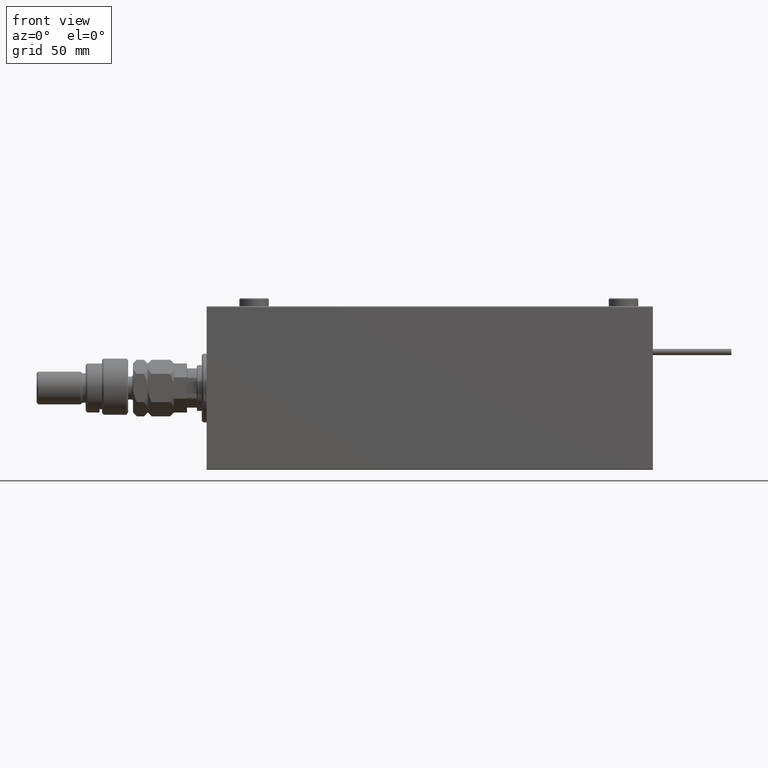
[diagram: clean part render]
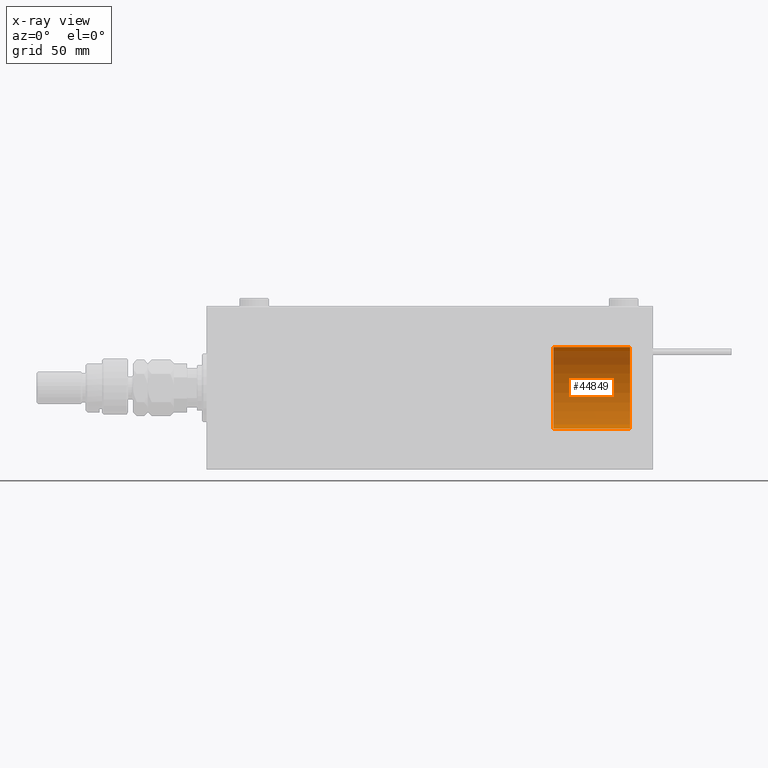
[diagram: x-ray — body ghosted, one internal face saturated and labeled with its STEP entity id]
A machine part, front view, then the same camera in x-ray: the body is ghosted and one INTERNAL B-rep face — a face not visible from any outside direction — is saturated and labeled: STEP entity #44849.
In plain terms, the highlighted cylindrical surface (partial cylindrical patch) has radius 25 mm, axis along (1, -0, -0).
Its self-contained STEP definition (entity closure, byte-faithful):
#2103 = DIRECTION ( 'NONE',  ( 0.000000000000000000, 0.000000000000000000, 1.000000000000000000 ) ) ;
#3312 = CARTESIAN_POINT ( 'NONE',  ( 25.00000000000000000, 3.061616997868383043E-15, 0.000000000000000000 ) ) ;
#3358 = CIRCLE ( 'NONE', #18288, 25.00000000000000000 ) ;
#5414 = CARTESIAN_POINT ( 'NONE',  ( 25.00000000000000000, 3.061616997868383043E-15, 47.00000000000000000 ) ) ;
#6326 = ORIENTED_EDGE ( 'NONE', *, *, #44727, .F. ) ;
#6755 = CARTESIAN_POINT ( 'NONE',  ( -25.00000000000000000, 0.000000000000000000, 47.00000000000000000 ) ) ;
#7282 = VERTEX_POINT ( 'NONE', #12991 ) ;
#7609 = CARTESIAN_POINT ( 'NONE',  ( 0.000000000000000000, 0.000000000000000000, 47.00000000000000000 ) ) ;
#10921 = DIRECTION ( 'NONE',  ( -0.000000000000000000, -0.000000000000000000, -1.000000000000000000 ) ) ;
#11740 = CYLINDRICAL_SURFACE ( 'NONE', #50133, 25.00000000000000000 ) ;
#12589 = EDGE_CURVE ( 'NONE', #52844, #7282, #3358, .T. ) ;
#12991 = CARTESIAN_POINT ( 'NONE',  ( -25.00000000000000000, 0.000000000000000000, 0.000000000000000000 ) ) ;
#13679 = EDGE_CURVE ( 'NONE', #14389, #7282, #52770, .T. ) ;
#14151 = VECTOR ( 'NONE', #24286, 1000.000000000000000 ) ;
#14389 = VERTEX_POINT ( 'NONE', #21219 ) ;
#18288 = AXIS2_PLACEMENT_3D ( 'NONE', #31757, #48564, #22929 ) ;
#21219 = CARTESIAN_POINT ( 'NONE',  ( -25.00000000000000000, 0.000000000000000000, 47.00000000000000000 ) ) ;
#22929 = DIRECTION ( 'NONE',  ( 1.000000000000000000, 0.000000000000000000, 0.000000000000000000 ) ) ;
#24286 = DIRECTION ( 'NONE',  ( -0.000000000000000000, -0.000000000000000000, -1.000000000000000000 ) ) ;
#26711 = EDGE_LOOP ( 'NONE', ( #6326, #47885, #35353, #52688 ) ) ;
#28148 = CIRCLE ( 'NONE', #31682, 25.00000000000000000 ) ;
#28552 = DIRECTION ( 'NONE',  ( -1.000000000000000000, 0.000000000000000000, 0.000000000000000000 ) ) ;
#30770 = CARTESIAN_POINT ( 'NONE',  ( 0.000000000000000000, 0.000000000000000000, 47.00000000000000000 ) ) ;
#31682 = AXIS2_PLACEMENT_3D ( 'NONE', #30770, #2103, #44005 ) ;
#31757 = CARTESIAN_POINT ( 'NONE',  ( 0.000000000000000000, 0.000000000000000000, 0.000000000000000000 ) ) ;
#32550 = CARTESIAN_POINT ( 'NONE',  ( 25.00000000000000000, 3.061616997868383043E-15, 47.00000000000000000 ) ) ;
#35353 = ORIENTED_EDGE ( 'NONE', *, *, #12589, .T. ) ;
#44005 = DIRECTION ( 'NONE',  ( 1.000000000000000000, 0.000000000000000000, 0.000000000000000000 ) ) ;
#44727 = EDGE_CURVE ( 'NONE', #53916, #14389, #28148, .T. ) ;
#44849 = ADVANCED_FACE ( 'NONE', ( #48949 ), #11740, .T. ) ;
#45499 = LINE ( 'NONE', #32550, #14151 ) ;
#47885 = ORIENTED_EDGE ( 'NONE', *, *, #50748, .T. ) ;
#48564 = DIRECTION ( 'NONE',  ( 0.000000000000000000, 0.000000000000000000, 1.000000000000000000 ) ) ;
#48949 = FACE_OUTER_BOUND ( 'NONE', #26711, .T. ) ;
#50133 = AXIS2_PLACEMENT_3D ( 'NONE', #7609, #10921, #28552 ) ;
#50748 = EDGE_CURVE ( 'NONE', #53916, #52844, #45499, .T. ) ;
#52538 = VECTOR ( 'NONE', #53591, 1000.000000000000000 ) ;
#52688 = ORIENTED_EDGE ( 'NONE', *, *, #13679, .F. ) ;
#52770 = LINE ( 'NONE', #6755, #52538 ) ;
#52844 = VERTEX_POINT ( 'NONE', #3312 ) ;
#53591 = DIRECTION ( 'NONE',  ( -0.000000000000000000, -0.000000000000000000, -1.000000000000000000 ) ) ;
#53916 = VERTEX_POINT ( 'NONE', #5414 ) ;